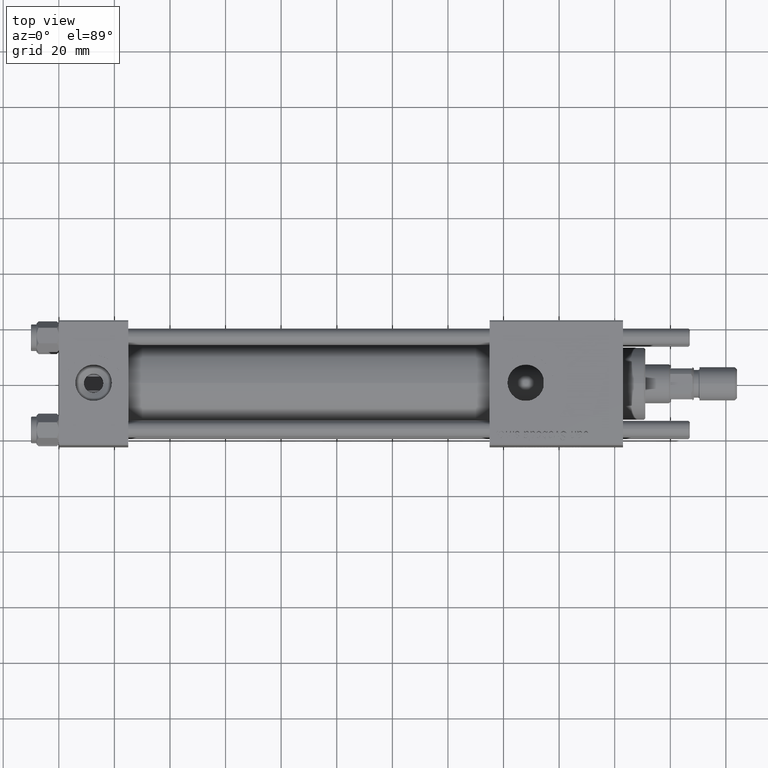
[diagram: clean part render]
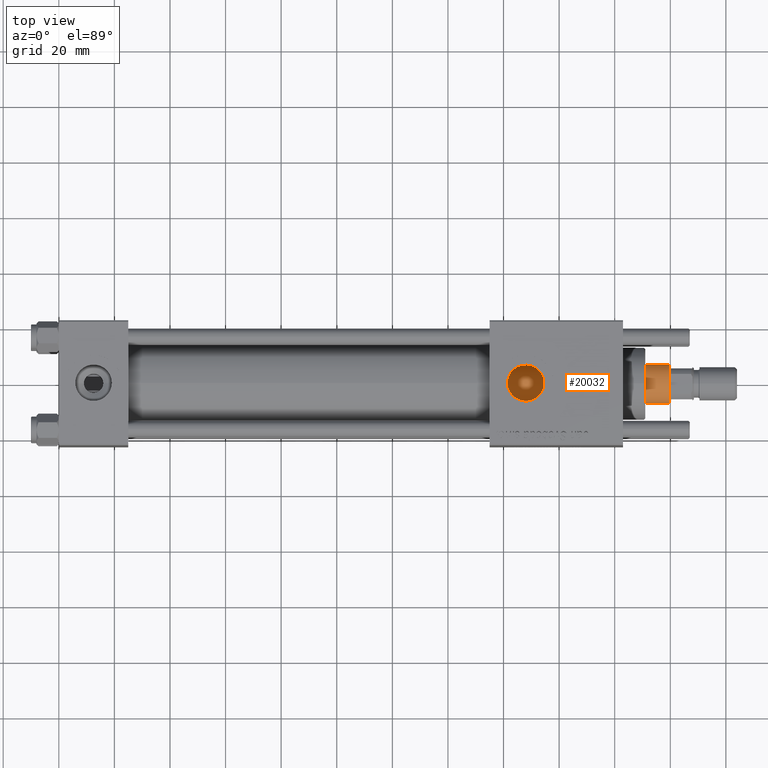
[diagram: same view with one face highlighted and labeled with its STEP entity id]
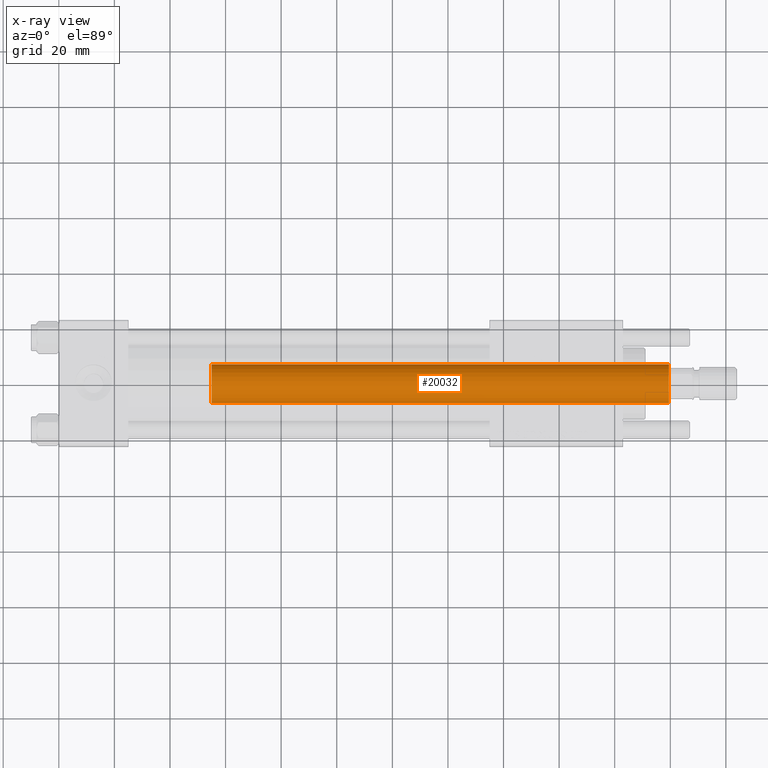
[diagram: x-ray of the same camera — body ghosted, the highlighted face saturated]
A machine part, top view. The second image highlights one B-rep face of the part: STEP entity #20032.
The next image is the same camera in x-ray: the body ghosted, the highlighted face saturated — about 0% of this face is hidden behind the body in this view.
In plain terms, the highlighted cylindrical surface (edge-blend (fillet) strip) has radius 7 mm, axis along (-1, 0, 0).
Its self-contained STEP definition (entity closure, byte-faithful):
#1240 = ORIENTED_EDGE ( 'NONE', *, *, #45264, .T. ) ;
#1369 = CYLINDRICAL_SURFACE ( 'NONE', #29774, 7.000000000000000000 ) ;
#1627 = EDGE_CURVE ( 'NONE', #28573, #51708, #50779, .T. ) ;
#2279 = EDGE_CURVE ( 'NONE', #54996, #6729, #45726, .T. ) ;
#5534 = VECTOR ( 'NONE', #51097, 1000.000000000000000 ) ;
#6729 = VERTEX_POINT ( 'NONE', #9404 ) ;
#7403 = EDGE_CURVE ( 'NONE', #54996, #28573, #38113, .T. ) ;
#9404 = CARTESIAN_POINT ( 'NONE',  ( 7.000000000000000000, 8.572527594031473190E-16, 30.00000000000000000 ) ) ;
#11794 = ORIENTED_EDGE ( 'NONE', *, *, #2279, .F. ) ;
#13128 = AXIS2_PLACEMENT_3D ( 'NONE', #13414, #50691, #55164 ) ;
#13153 = VECTOR ( 'NONE', #40943, 1000.000000000000000 ) ;
#13414 = CARTESIAN_POINT ( 'NONE',  ( 0.000000000000000000, 0.000000000000000000, 30.00000000000000000 ) ) ;
#14547 = EDGE_LOOP ( 'NONE', ( #11794, #19908, #27240, #1240 ) ) ;
#15095 = DIRECTION ( 'NONE',  ( -1.000000000000000000, 0.000000000000000000, 0.000000000000000000 ) ) ;
#16612 = DIRECTION ( 'NONE',  ( 0.000000000000000000, 0.000000000000000000, -1.000000000000000000 ) ) ;
#18696 = CARTESIAN_POINT ( 'NONE',  ( 0.000000000000000000, 0.000000000000000000, 195.0000000000000000 ) ) ;
#19581 = DIRECTION ( 'NONE',  ( -0.000000000000000000, -0.000000000000000000, -1.000000000000000000 ) ) ;
#19908 = ORIENTED_EDGE ( 'NONE', *, *, #7403, .T. ) ;
#20032 = ADVANCED_FACE ( 'NONE', ( #24030 ), #1369, .T. ) ;
#21024 = CARTESIAN_POINT ( 'NONE',  ( -7.000000000000000000, 0.000000000000000000, 30.00000000000000000 ) ) ;
#22730 = CARTESIAN_POINT ( 'NONE',  ( -7.000000000000000000, 0.000000000000000000, 195.0000000000000000 ) ) ;
#24030 = FACE_OUTER_BOUND ( 'NONE', #14547, .T. ) ;
#25166 = CARTESIAN_POINT ( 'NONE',  ( -7.000000000000000000, 0.000000000000000000, 194.5000000000000284 ) ) ;
#27240 = ORIENTED_EDGE ( 'NONE', *, *, #1627, .T. ) ;
#28573 = VERTEX_POINT ( 'NONE', #25166 ) ;
#29141 = CARTESIAN_POINT ( 'NONE',  ( 7.000000000000000000, 8.572527594031473190E-16, 194.5000000000000284 ) ) ;
#29774 = AXIS2_PLACEMENT_3D ( 'NONE', #18696, #19581, #15095 ) ;
#30903 = DIRECTION ( 'NONE',  ( 1.000000000000000000, 0.000000000000000000, 0.000000000000000000 ) ) ;
#38113 = CIRCLE ( 'NONE', #41906, 7.000000000000000000 ) ;
#40943 = DIRECTION ( 'NONE',  ( -0.000000000000000000, -0.000000000000000000, -1.000000000000000000 ) ) ;
#41906 = AXIS2_PLACEMENT_3D ( 'NONE', #57475, #16612, #30903 ) ;
#45264 = EDGE_CURVE ( 'NONE', #51708, #6729, #51245, .T. ) ;
#45726 = LINE ( 'NONE', #50806, #5534 ) ;
#50691 = DIRECTION ( 'NONE',  ( 0.000000000000000000, 0.000000000000000000, 1.000000000000000000 ) ) ;
#50779 = LINE ( 'NONE', #22730, #13153 ) ;
#50806 = CARTESIAN_POINT ( 'NONE',  ( 7.000000000000000000, 8.572527594031473190E-16, 195.0000000000000000 ) ) ;
#51097 = DIRECTION ( 'NONE',  ( -0.000000000000000000, -0.000000000000000000, -1.000000000000000000 ) ) ;
#51245 = CIRCLE ( 'NONE', #13128, 7.000000000000000000 ) ;
#51708 = VERTEX_POINT ( 'NONE', #21024 ) ;
#54996 = VERTEX_POINT ( 'NONE', #29141 ) ;
#55164 = DIRECTION ( 'NONE',  ( 1.000000000000000000, 0.000000000000000000, 0.000000000000000000 ) ) ;
#57475 = CARTESIAN_POINT ( 'NONE',  ( 0.000000000000000000, 0.000000000000000000, 194.5000000000000284 ) ) ;